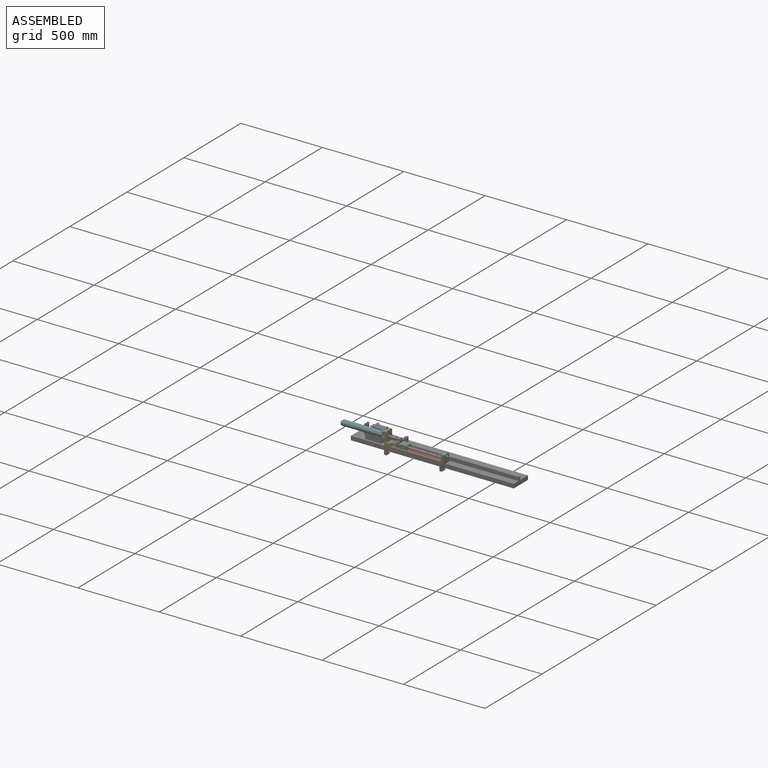
[diagram: assembled view]
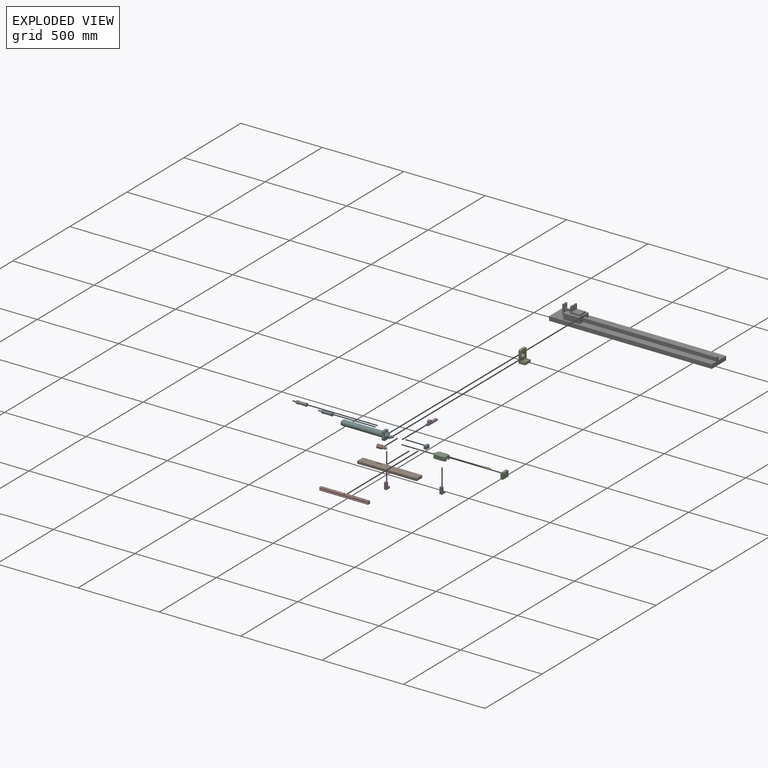
[diagram: exploded view]
GUIDED TOUR — MATED ASSEMBLY (Onshape document f935814cf0b3235206766590, AutoMate assembly f935814cf0b3235206766590_0b8956ea74bc2b2caeea1ce2_f27f7069bc612b94456843f6_default)

This assembly has 15 components, labeled P0..P14 below (a component is one placed occurrence of a part; the same part can appear more than once), held together by 35 mates. A mate is a constraint between two components; its type names the relative motion it leaves free:
  CYLINDRICAL — leaves both rotation about and translation along the listed axis free,
  PLANAR — leaves sliding in the plane through the listed point (normal = the listed direction) and rotation about that normal free,
  SLIDER — leaves translation along the listed axis free.
Axis/direction vectors are unit vectors and 'through' points are millimeter coordinates, both in the assembly's world frame.

MATES
  1. PLANAR "Planar 5": P4 <-> P1, direction (0.000, -1.000, 0.000) through (124.01, -184.45, 217.09) mm
  2. PLANAR "Planar 16": P6 <-> P1, direction (-1.000, 0.000, 0.000) through (-106.99, -103.95, 174.59) mm
  3. PLANAR "Planar 14": P1 <-> P3, direction (0.000, 0.000, -1.000) through (292.76, -159.47, 187.09) mm
  4. PLANAR "Planar 24": P10 <-> P12, direction (-1.000, 0.000, 0.000) through (459.01, -159.45, 237.09) mm
  5. PLANAR "Planar 10": P7 <-> P1, direction (0.000, -1.000, 0.000) through (304.01, -174.45, 204.59) mm
  6. PLANAR "Planar 23": P10 <-> P1, direction (1.000, 0.000, 0.000) through (474.01, -159.45, 219.24) mm
  7. PLANAR "Planar 6": P1 <-> P4, direction (-1.000, 0.000, 0.000) through (109.01, -159.45, 194.59) mm
  8. PLANAR "Planar 9": P1 <-> P7, direction (-1.000, 0.000, 0.000) through (109.01, -184.45, 194.59) mm
  9. SLIDER "Slider 1": P6 <-> P14, axis (1.000, 0.000, 0.000) through (13.01, -106.45, 252.09) mm
  10. PLANAR "Planar 1": P14 <-> P6, direction (-1.000, 0.000, 0.000) through (13.01, -110.48, 261.24) mm
  11. CYLINDRICAL "Cylindrical 5": P11 <-> P2, axis (0.000, 0.000, 1.000) through (194.01, -180.45, 241.09) mm
  12. PLANAR "Planar 2": P6 <-> P0, direction (1.000, 0.000, 0.000) through (13.01, -116.45, 246.50) mm
  13. PLANAR "Planar 11": P11 <-> P7, direction (0.000, 0.000, -1.000) through (194.01, -180.45, 232.09) mm
  14. CYLINDRICAL "Cylindrical 9": P1 <-> P8, axis (0.000, 0.000, -1.000) through (456.51, -176.95, 187.09) mm
  15. CYLINDRICAL "Cylindrical 11": P13 <-> P9, axis (1.000, 0.000, 0.000) through (145.51, -164.45, 247.09) mm
  16. PLANAR "Planar 21": P1 <-> P10, direction (0.000, 0.000, 1.000) through (474.01, -159.45, 202.09) mm
  17. CYLINDRICAL "Cylindrical 4": P13 <-> P4, axis (1.000, 0.000, 0.000) through (109.01, -164.45, 247.09) mm
  18. PLANAR "Planar 13": P8 <-> P1, direction (0.000, 0.000, 1.000) through (449.01, -176.95, 187.09) mm
  19. CYLINDRICAL "Cylindrical 8": P5 <-> P11, axis (0.000, 0.000, 1.000) through (194.01, -123.95, 232.09) mm
  20. PLANAR "Planar 20": P11 <-> P9, direction (-1.000, 0.000, 0.000) through (186.51, -174.45, 246.59) mm
  21. CYLINDRICAL "Cylindrical 7": P5 <-> P11, axis (0.000, 0.000, 1.000) through (194.01, -108.95, 232.09) mm
  22. PLANAR "Planar 15": P9 <-> P13, direction (-1.000, 0.000, 0.000) through (145.51, -164.45, 235.09) mm
  23. CYLINDRICAL "Cylindrical 10": P3 <-> P1, axis (0.000, 0.000, 1.000) through (116.51, -176.95, 187.09) mm
  24. CYLINDRICAL "Cylindrical 2": P12 <-> P10, axis (-1.000, 0.000, 0.000) through (464.11, -159.45, 227.09) mm
  25. PLANAR "Planar 8": P7 <-> P1, direction (0.000, 0.000, -1.000) through (304.01, -170.45, 202.09) mm
  26. PLANAR "Planar 4": P1 <-> P4, direction (0.000, 0.000, 1.000) through (109.01, -134.45, 202.09) mm
  27. PLANAR "Planar 22": P10 <-> P1, direction (0.000, -1.000, 0.000) through (459.01, -184.45, 202.09) mm
  28. PLANAR "Planar 17": P6 <-> P1, direction (0.000, -1.000, 0.000) through (393.00, -166.45, 174.59) mm
  29. PLANAR "Planar 3": P1 <-> P6, direction (0.000, 0.000, -1.000) through (109.01, -184.45, 187.09) mm
  30. CYLINDRICAL "Cylindrical 1": P0 <-> P6, axis (-1.000, 0.000, 0.000) through (10.71, -126.45, 252.09) mm
  31. PLANAR "Planar 18": P7 <-> P2, direction (0.000, 0.000, 1.000) through (304.01, -164.45, 220.09) mm
  32. PLANAR "Planar 12": P5 <-> P11, direction (0.000, 0.000, 1.000) through (194.01, -123.95, 232.09) mm
  33. CYLINDRICAL "Cylindrical 6": P11 <-> P2, axis (0.000, 0.000, -1.000) through (194.01, -148.45, 232.09) mm
  34. PLANAR "Planar 7": P4 <-> P13, direction (-1.000, 0.000, 0.000) through (109.01, -159.45, 279.09) mm
  35. PLANAR "Planar 19": P2 <-> P7, direction (0.000, -1.000, 0.000) through (212.01, -157.90, 211.00) mm

ASSEMBLY ORDER
  1. P13 — the base component [order verified]
  2. P4 [order verified]
  3. P9 [order verified]
  4. P1 [order verified]
  5. P10 [order verified]
  6. P11 [order verified]
  7. P0 [order verified]
  8. P5 [order verified]
  9. P12 [order verified]
  10. P7 [order verified]
  11. P14 [order verified]
  12. P2 [order verified]
  13. P6 [order verified]
  14. P8 [order verified]
  15. P3 [order verified]
(P4, P9 verified with a relaxed clearance tolerance: the source model stores slight part interference there.)
Order-tag legend:
  [order verified] — this step's position reverses a verified removal order: the component was checked to insert without passing through the ones already placed.

Of the 15 components, 7 carry the full construction recipe — the FeatureScript program that regenerates the part's solid from scratch; the rest are supplied as boundary geometry only.
Because this assembly has more than 12 components, the tour below covers the 12 most significant ones individually (every recipe-attached component first, then the largest by part volume), in assembly order; the remaining 3 are summarized together in a grouped section at the end.
Each toured component is shown spotlighted twice — in the assembled view, then in the exploded view, where a leader line traces a displaced component back to its assembled socket (saturated green if recipe-attached, orange if geometry-only; every other component desaturated gray) — followed by its recipe or geometry summary and the mates that hold it.
NOTE — document 2 of 2 of this assembly tour. The two overview renders and the header above are repeated from document 1; the component sections below continue where the previous document stopped.
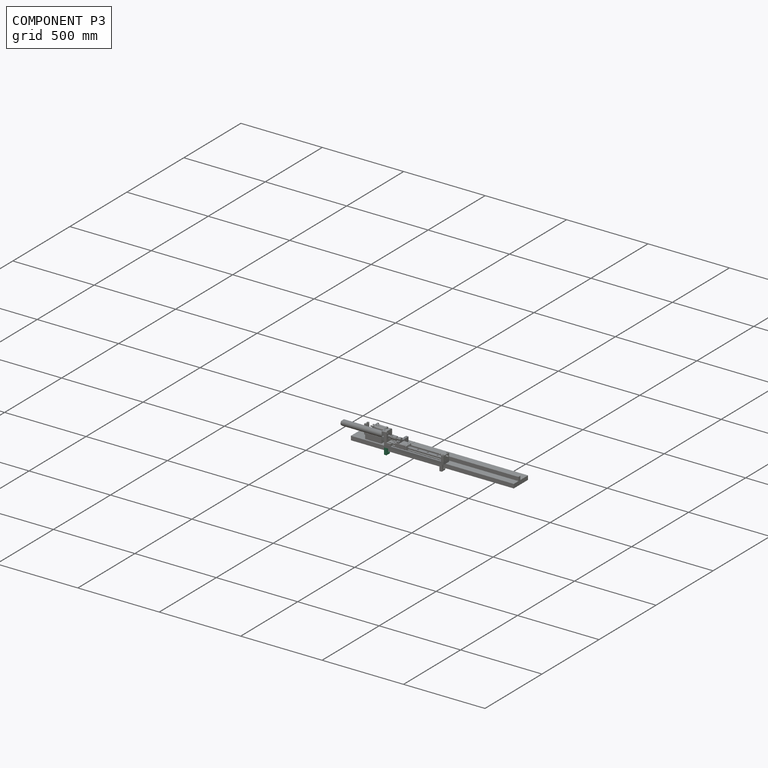
[diagram: component P3 — assembled]
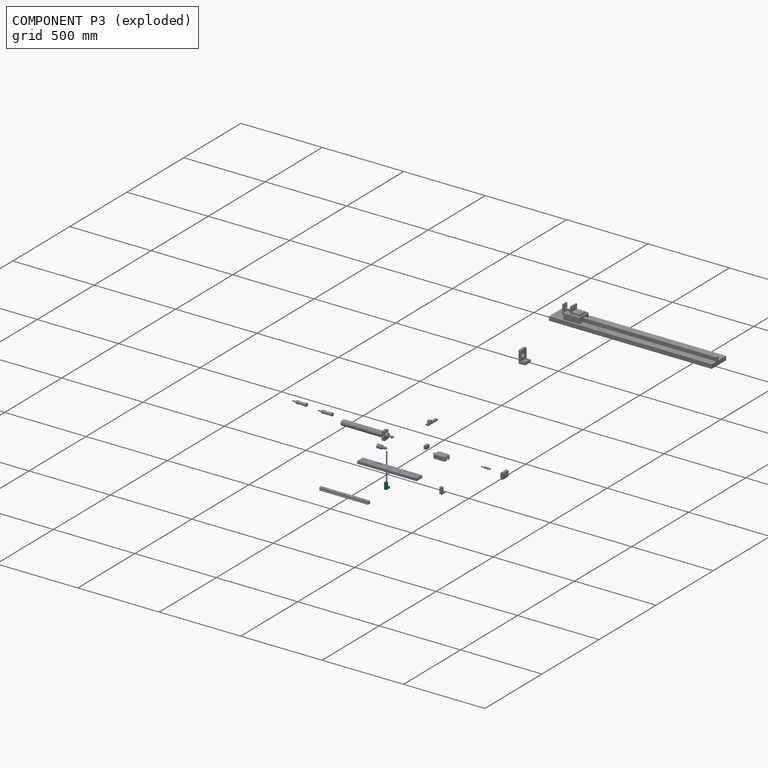
[diagram: component P3 — exploded]
COMPONENT P3 — recipe-attached (CADFS 00789692, mesh-verified: the recipe's output STEP matches this component's geometry to below the mesh-comparison resolution (tessellation chordal tolerance ~0.0783 mm)).
Held by: PLANAR mate "Planar 14" to P1; CYLINDRICAL mate "Cylindrical 10" to P1.
Construction recipe (FeatureScript — the CAD program that rebuilds this solid; sketch coordinates are in the units given by the * unit suffixes, e.g. mm):

FeatureScript 1511;
import(path : "onshape/std/geometry.fs", version : "1511.0");
import(path : "onshape/std/common.fs", version : "1511.0");
const mm = millimeter;
const VERTEX = EntityType.VERTEX;
const EDGE = EntityType.EDGE;
const FACE = EntityType.FACE;
const BODY = EntityType.BODY;
function v(x, y){return vector(x, y);}
function OD(order){return orderDisambiguation(order);}
function OSD(set){return originalSetDisambiguation(set);}
function TD(topology){return topologyDisambiguation(topology);}
function TDD(query){return trueDependencyDisambiguation(query);}
function sQuery(a, b, c) {return sketchEntityQuery(a, b, c);}

annotation { "Feature Type Name" : "Feature", "Feature Type Description" : "" }
export const myFeature = defineFeature(function(context is Context, id is Id, definition is map)
    precondition{}
    {
        {
            var Q0;
            Q0=qCreatedBy(makeId("Top.planeOp"),FACE);
            var sketch = newSketch(context, id + "F0", { "sketchPlane" : qUnion([Q0])});
            skLineSegment(sketch, "E0.bottom", {"start": v(7.5, -7.5) * mm, "end": v(-7.5, -7.5) * mm});
            skLineSegment(sketch, "E0.top", {"start": v(7.5, 7.5) * mm, "end": v(-7.5, 7.5) * mm});
            skLineSegment(sketch, "E0.left", {"start": v(7.5, -7.5) * mm, "end": v(7.5, 7.5) * mm});
            skLineSegment(sketch, "E0.right", {"start": v(-7.5, -7.5) * mm, "end": v(-7.5, 7.5) * mm});
            skPoint(sketch, "E0.middle", {"position": v(0, 0) * mm});
            skCircle(sketch, "E1", {"center": v(0, 0) * mm, "radius": 3 * mm});
            skSolve(sketch);
        }
        {
            var Q0;
            Q0 = qSketchRegion(id + "F0", true);
            extrude(context, id + "F1", {"entities" : qUnion([Q0]), "depth" : 40 * mm, "offsetDistance" : 25 * mm});
        }
        {
            var Q0;
            Q0=makeQuery(id+"F1.opExtrude","CAP_FACE",FACE,{"disambiguationData":[OSD([sQuery(id+"F0.wireOp",EDGE,"E0.bottom"),sQuery(id+"F0.wireOp",EDGE,"E0.top"),sQuery(id+"F0.wireOp",EDGE,"E0.left"),sQuery(id+"F0.wireOp",EDGE,"E0.right"),sQuery(id+"F0.wireOp",EDGE,"E1")])],"isStart":true});
            var sketch = newSketch(context, id + "F2", { "sketchPlane" : qUnion([Q0])});
            skLineSegment(sketch, "E2.bottom", {"start": v(7.5, -7.5) * mm, "end": v(-7.5, -7.5) * mm});
            skLineSegment(sketch, "E2.top", {"start": v(7.5, -22.5) * mm, "end": v(-7.5, -22.5) * mm});
            skLineSegment(sketch, "E2.left", {"start": v(7.5, -7.5) * mm, "end": v(7.5, -22.5) * mm});
            skLineSegment(sketch, "E2.right", {"start": v(-7.5, -7.5) * mm, "end": v(-7.5, -22.5) * mm});
            skCircle(sketch, "E3", {"center": v(0, -15) * mm, "radius": 3 * mm});
            skPoint(sketch, "E3.centerSnap0", {"position": v(0, -7.5) * mm});
            skSolve(sketch);
        }
        {
            var Q0;
            Q0 = qSketchRegion(id + "F2", true);
            extrude(context, id + "F3", {"entities" : qUnion([Q0]), "operationType" : NewBodyOperationType.ADD, "oppositeDirection" : true, "depth" : 10 * mm, "offsetDistance" : 25 * mm});
        }
        {
            var Q0;
            Q0=makeQuery(id+"F3.boolean.opBoolean","MERGE",FACE,{"derivedFrom":[makeQuery(id+"F1.opExtrude","CAP_FACE",FACE,{"disambiguationData":[OSD([sQuery(id+"F0.wireOp",EDGE,"E0.bottom"),sQuery(id+"F0.wireOp",EDGE,"E0.top"),sQuery(id+"F0.wireOp",EDGE,"E0.left"),sQuery(id+"F0.wireOp",EDGE,"E0.right"),sQuery(id+"F0.wireOp",EDGE,"E1")])],"isStart":true}),makeQuery(id+"F3.opExtrude","CAP_FACE",FACE,{"disambiguationData":[OSD([sQuery(id+"F2.wireOp",EDGE,"E2.bottom"),sQuery(id+"F2.wireOp",EDGE,"E2.top"),sQuery(id+"F2.wireOp",EDGE,"E2.left"),sQuery(id+"F2.wireOp",EDGE,"E2.right"),sQuery(id+"F2.wireOp",EDGE,"E3")])],"isStart":true})]});
            var sketch = newSketch(context, id + "F4", { "sketchPlane" : qUnion([Q0])});
            skCircle(sketch, "E4", {"center": v(0, 0) * mm, "radius": 5 * mm});
            skSolve(sketch);
        }
        {
            var Q0;
            Q0 = qSketchRegion(id + "F4", true);
            extrude(context, id + "F5", {"entities" : qUnion([Q0]), "operationType" : NewBodyOperationType.REMOVE, "oppositeDirection" : true, "depth" : 25 * mm, "offsetDistance" : 25 * mm});
        }
    });
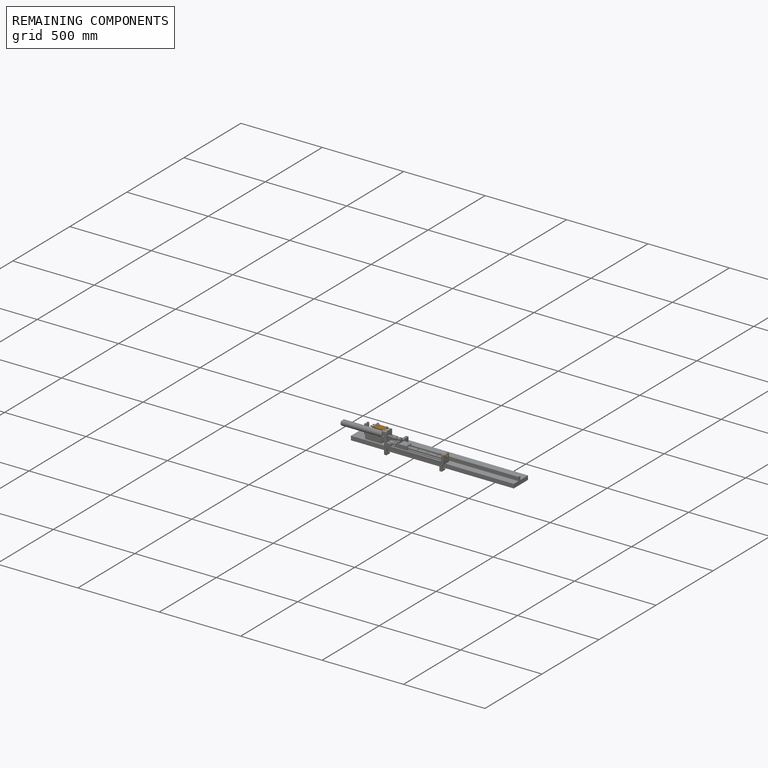
[diagram: remaining components — assembled]
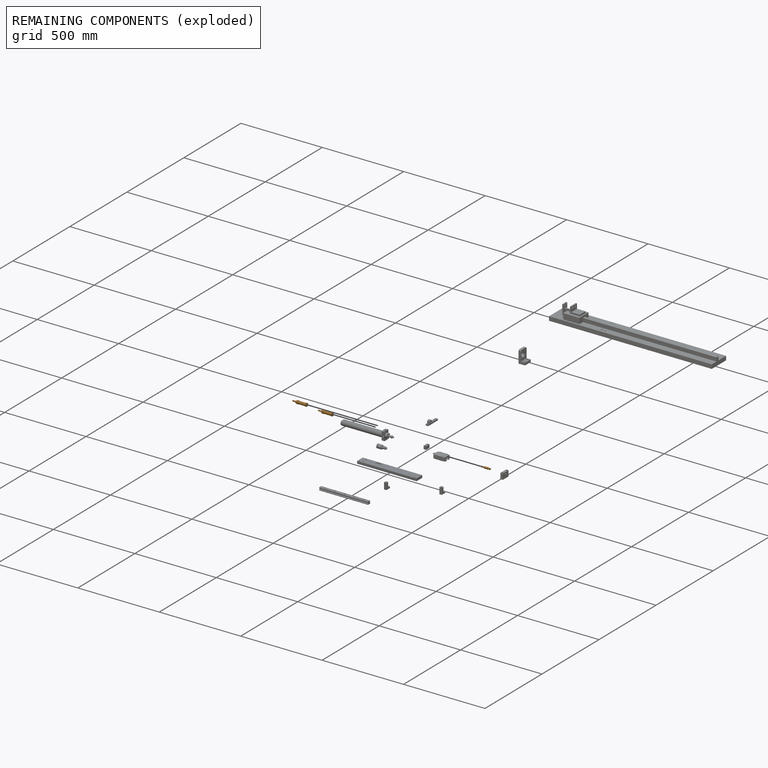
[diagram: remaining components — exploded]
REMAINING COMPONENTS (grouped) — the 3 components below fall outside the per-component tour by the significance rule stated above; both spotlight views highlight the whole group.
  P0: bounding box 90.4 x 18.7 x 18.7 mm, volume 14782 mm^3. Held by: PLANAR mate "Planar 2" to P6; CYLINDRICAL mate "Cylindrical 1" to P6.
  P12: bounding box 57.0 x 14.7 x 14.7 mm, volume 3863 mm^3. Held by: PLANAR mate "Planar 24" to P10; CYLINDRICAL mate "Cylindrical 2" to P10.
  P14: bounding box 90.4 x 18.7 x 18.7 mm, volume 14782 mm^3. Held by: SLIDER mate "Slider 1" to P6; PLANAR mate "Planar 1" to P6.
PROVENANCE & LICENSES
Assembly (occurrences, transforms, mates, per-part STEP geometry): AutoMate dataset, Zenodo record 7776208, CC0.
Construction recipes: CADFS (HuggingFace VladPyatov/CADFS, CC-BY-4.0, layered over the ABC dataset), FeatureScript reconstruction programs keyed by ABC model id.
Join: ABC meta listings map ABC model id -> Onshape documentId; within a shared document, parts are matched by geometric signature (bounding-box dims + volume at 0.1% relative tolerance, exact B-rep face/solid counts).
Verification: 7 of this assembly's 15 components carry a recipe attachment, and every attachment is mesh-verified: the CADFS STEP and the AutoMate member STEP were compared as meshes in their shared local frame (symmetric sampled-point-to-mesh distance); worst across the 7 attachments: below the mesh-comparison resolution (tessellation chordal tolerance ~1.52 mm) on a 1013 mm part.
Renders: orthographic iso camera (az 35 / el 25); the floor grid conveys scale (grid pitch printed in each image; no ruler). In the exploded view each component is displaced by its stored offset vector: the offsets alone carry the explosion direction (mate normal/axis signs are not orientation cues and do not encode it), and separation distances are assigned per mate-chain, not proportionally to assembly-order depth.
